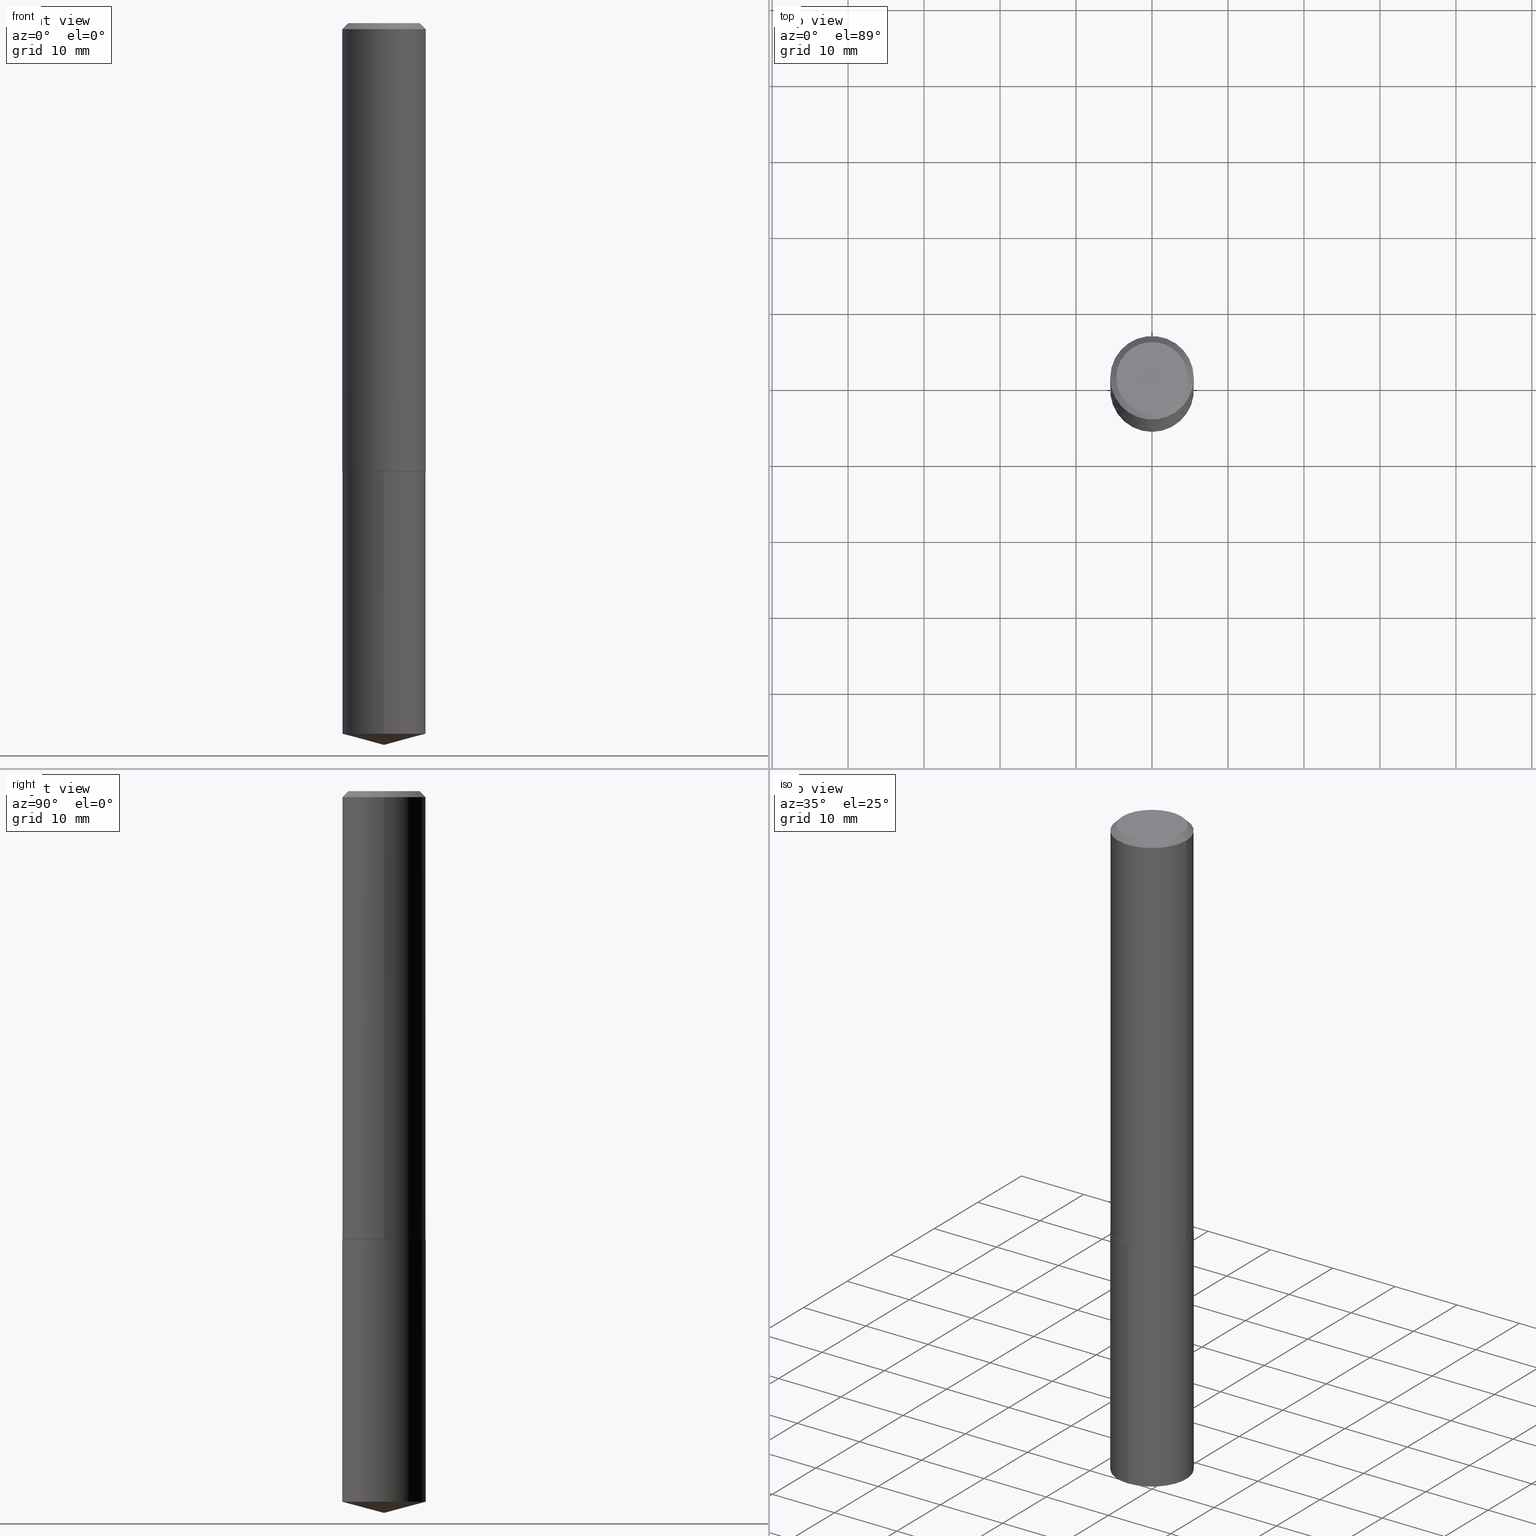
[diagram: canonical four-view strip — front | top / right | iso, engineering-drawing reading convention]
A machine part, canonical four-view strip (front | top / right | iso — engineering-drawing reading convention). The complete STEP part file that produces these views, byte-faithful:
ISO-10303-21;
HEADER;
FILE_DESCRIPTION (( 'STEP AP203' ),
    '1' );
FILE_NAME ('63032.STEP',
    '2024-04-23T08:10:49',
    ( '' ),
    ( '' ),
    'SwSTEP 2.0',
    'SolidWorks 2023',
    '' );
FILE_SCHEMA (( 'CONFIG_CONTROL_DESIGN' ));
ENDSEC;

DATA;
#1 = ORIENTED_EDGE ( 'NONE', *, *, #212, .F. ) ;
#2 = ORIENTED_EDGE ( 'NONE', *, *, #218, .T. ) ;
#3 =( LENGTH_UNIT ( ) NAMED_UNIT ( * ) SI_UNIT ( $, .METRE. ) );
#4 = CALENDAR_DATE ( 2024, 23, 4 ) ;
#5 = EDGE_CURVE ( 'NONE', #165, #300, #114, .T. ) ;
#6 = PRODUCT_RELATED_PRODUCT_CATEGORY ( 'detail', '', ( #157 ) ) ;
#7 = CARTESIAN_POINT ( 'NONE',  ( -1.512160567852904222E-15, -0.2165500000000081249, -2.322899999999999299 ) ) ;
#8 = SHAPE_DEFINITION_REPRESENTATION ( #34, #337 ) ;
#9 = AXIS2_PLACEMENT_3D ( 'NONE', #328, #57, #302 ) ;
#10 = ORIENTED_EDGE ( 'NONE', *, *, #283, .T. ) ;
#11 = DIRECTION ( 'NONE',  ( -2.445528827278945188E-29, 3.491395385220622639E-15, 1.000000000000000000 ) ) ;
#12 = ORGANIZATION ( 'UNSPECIFIED', 'UNSPECIFIED', '' ) ;
#13 = CYLINDRICAL_SURFACE ( 'NONE', #362, 0.2165500000000000203 ) ;
#14 = EDGE_CURVE ( 'NONE', #81, #300, #24, .T. ) ;
#15 = ORIENTED_EDGE ( 'NONE', *, *, #5, .T. ) ;
#16 = DIRECTION ( 'NONE',  ( -2.445528827278945468E-29, 3.491395385220622639E-15, 1.000000000000000000 ) ) ;
#17 = ORIENTED_EDGE ( 'NONE', *, *, #14, .T. ) ;
#18 = DIRECTION ( 'NONE',  ( 0.7071067811860403118, -2.468850131076945266E-15, 0.7071067811870545006 ) ) ;
#19 = AXIS2_PLACEMENT_3D ( 'NONE', #340, #109, #287 ) ;
#20 = CC_DESIGN_APPROVAL ( #30, ( #43 ) ) ;
#21 = CARTESIAN_POINT ( 'NONE',  ( -8.713403499450715820E-28, 1.243977945476864475E-13, 35.62987874015747991 ) ) ;
#22 = ORIENTED_EDGE ( 'NONE', *, *, #261, .F. ) ;
#23 = DIRECTION ( 'NONE',  ( -2.445528827278945468E-29, 3.491395385220622639E-15, 1.000000000000000000 ) ) ;
#24 = LINE ( 'NONE', #83, #250 ) ;
#25 = APPROVAL_ROLE ( '' ) ;
#26 = VECTOR ( 'NONE', #330, 39.37007874015748143 ) ;
#27 = AXIS2_PLACEMENT_3D ( 'NONE', #336, #119, #68 ) ;
#28 = DIRECTION ( 'NONE',  ( 1.000000000000000000, -6.982962677686271444E-15, 0.000000000000000000 ) ) ;
#29 = COORDINATED_UNIVERSAL_TIME_OFFSET ( 5, 0, .BEHIND. ) ;
#30 = APPROVAL ( #144, 'UNSPECIFIED' ) ;
#31 = LINE ( 'NONE', #181, #26 ) ;
#32 = CARTESIAN_POINT ( 'NONE',  ( 0.2165500000000000203, -1.621269359691810318E-15, -0.03125000000000019429 ) ) ;
#33 = ADVANCED_FACE ( 'NONE', ( #55 ), #277, .T. ) ;
#34 = PRODUCT_DEFINITION_SHAPE ( 'NONE', 'NONE',  #47 ) ;
#35 =( NAMED_UNIT ( * ) PLANE_ANGLE_UNIT ( ) SI_UNIT ( $, .RADIAN. ) );
#36 = DIRECTION ( 'NONE',  ( 1.000000000000000000, -6.982962677686269866E-15, 0.000000000000000000 ) ) ;
#37 = VECTOR ( 'NONE', #18, 39.37007874015748854 ) ;
#38 = LOCAL_TIME ( 4, 10, 49.00000000000000000, #66 ) ;
#39 = APPROVAL_ROLE ( '' ) ;
#40 = ADVANCED_FACE ( 'NONE', ( #267 ), #379, .T. ) ;
#41 = DATE_AND_TIME ( #155, #69 ) ;
#42 = AXIS2_PLACEMENT_3D ( 'NONE', #147, #273, #112 ) ;
#43 = PRODUCT_DEFINITION_FORMATION_WITH_SPECIFIED_SOURCE ( 'ANY', '', #157, .NOT_KNOWN. ) ;
#44 = FACE_OUTER_BOUND ( 'NONE', #73, .T. ) ;
#45 = ORIENTED_EDGE ( 'NONE', *, *, #350, .T. ) ;
#46 = EDGE_LOOP ( 'NONE', ( #10, #91 ) ) ;
#47 = PRODUCT_DEFINITION ( 'UNKNOWN', '', #43, #177 ) ;
#48 = LINE ( 'NONE', #137, #169 ) ;
#49 = DIRECTION ( 'NONE',  ( -1.000000000000000000, 6.982962677686265922E-15, -4.876176775795935793E-29 ) ) ;
#50 = ORIENTED_EDGE ( 'NONE', *, *, #125, .T. ) ;
#51 = CARTESIAN_POINT ( 'NONE',  ( 5.679356755484362262E-29, -8.108616261329323209E-15, -2.322400000000000464 ) ) ;
#52 = EDGE_LOOP ( 'NONE', ( #372, #351, #288, #381 ) ) ;
#53 = PLANE ( 'NONE',  #186 ) ;
#54 = AXIS2_PLACEMENT_3D ( 'NONE', #101, #222, #341 ) ;
#55 = FACE_OUTER_BOUND ( 'NONE', #174, .T. ) ;
#56 = DIRECTION ( 'NONE',  ( 1.000000000000000000, -6.982962677686266711E-15, 4.876177403239504402E-29 ) ) ;
#57 = DIRECTION ( 'NONE',  ( -2.445468806185136597E-29, 3.491481338843145583E-15, 1.000000000000000000 ) ) ;
#58 = PERSON_AND_ORGANIZATION ( #281, #12 ) ;
#59 = CARTESIAN_POINT ( 'NONE',  ( -0.1852999999999999925, 1.348497380094688552E-15, 4.837354856539620827E-19 ) ) ;
#60 = CC_DESIGN_PERSON_AND_ORGANIZATION_ASSIGNMENT ( #184, #64, ( #157 ) ) ;
#61 = PERSON_AND_ORGANIZATION ( #281, #12 ) ;
#62 = LOCAL_TIME ( 4, 10, 49.00000000000000000, #332 ) ;
#63 = CARTESIAN_POINT ( 'NONE',  ( -0.2165500000000002701, -6.569935967040822957E-15, -2.322400000000000464 ) ) ;
#64 = PERSON_AND_ORGANIZATION_ROLE ( 'design_owner' ) ;
#65 = DIRECTION ( 'NONE',  ( -2.445468806185136877E-29, 3.491481338843145188E-15, 1.000000000000000000 ) ) ;
#66 = COORDINATED_UNIVERSAL_TIME_OFFSET ( 5, 0, .BEHIND. ) ;
#67 = CARTESIAN_POINT ( 'NONE',  ( 7.642090019328598283E-31, -1.091087918388489651E-16, -0.03125000000000019429 ) ) ;
#68 = DIRECTION ( 'NONE',  ( 1.000000000000000000, 0.000000000000000000, 0.000000000000000000 ) ) ;
#69 = LOCAL_TIME ( 4, 10, 49.00000000000000000, #338 ) ;
#70 = APPROVAL_STATUS ( 'not_yet_approved' ) ;
#71 = CIRCLE ( 'NONE', #128, 0.2165500000000000203 ) ;
#72 = DIRECTION ( 'NONE',  ( -2.445468806185136597E-29, 3.491481338843145583E-15, 1.000000000000000000 ) ) ;
#73 = EDGE_LOOP ( 'NONE', ( #354, #260, #1, #321 ) ) ;
#74 = DIRECTION ( 'NONE',  ( 1.000000000000000000, -6.982962677686266711E-15, 0.000000000000000000 ) ) ;
#75 = EDGE_CURVE ( 'NONE', #374, #103, #305, .T. ) ;
#76 = LINE ( 'NONE', #173, #37 ) ;
#77 = EDGE_LOOP ( 'NONE', ( #206, #258 ) ) ;
#78 = EDGE_CURVE ( 'NONE', #239, #377, #31, .T. ) ;
#79 = CARTESIAN_POINT ( 'NONE',  ( 5.680579489887453942E-29, -8.110362001998743924E-15, -2.322900000000000187 ) ) ;
#80 = PLANE ( 'NONE',  #353 ) ;
#81 = VERTEX_POINT ( 'NONE', #59 ) ;
#82 = DIRECTION ( 'NONE',  ( -2.445528827278945188E-29, 3.491395385220622639E-15, 1.000000000000000000 ) ) ;
#83 = CARTESIAN_POINT ( 'NONE',  ( -0.2165500000000000203, 1.403051776014112116E-15, -0.03125000000000019429 ) ) ;
#84 = DIRECTION ( 'NONE',  ( 1.000000000000000000, -6.982962677686266711E-15, 4.876176775795936353E-29 ) ) ;
#85 = LINE ( 'NONE', #148, #227 ) ;
#86 = APPROVAL_DATE_TIME ( #301, #30 ) ;
#87 = DIRECTION ( 'NONE',  ( 1.000000000000000000, -6.982962677686269866E-15, 0.000000000000000000 ) ) ;
#88 =( NAMED_UNIT ( * ) SI_UNIT ( $, .STERADIAN. ) SOLID_ANGLE_UNIT ( ) );
#89 = CLOSED_SHELL ( 'NONE', ( #193, #251, #294, #319, #201 ) ) ;
#90 = AXIS2_PLACEMENT_3D ( 'NONE', #51, #264, #164 ) ;
#91 = ORIENTED_EDGE ( 'NONE', *, *, #254, .T. ) ;
#92 = PERSON_AND_ORGANIZATION ( #281, #12 ) ;
#93 = CARTESIAN_POINT ( 'NONE',  ( -1.512160567852904222E-15, -0.2165500000000081249, -2.322899999999999299 ) ) ;
#94 = PLANE ( 'NONE',  #54 ) ;
#95 = DIRECTION ( 'NONE',  ( 1.000000000000000000, -6.982962677686266711E-15, 4.876176775795936353E-29 ) ) ;
#96 = AXIS2_PLACEMENT_3D ( 'NONE', #231, #23, #200 ) ;
#97 = ADVANCED_FACE ( 'NONE', ( #118 ), #256, .T. ) ;
#98 = EDGE_CURVE ( 'NONE', #333, #130, #122, .T. ) ;
#99 = ORIENTED_EDGE ( 'NONE', *, *, #261, .T. ) ;
#100 = CIRCLE ( 'NONE', #19, 0.2165500000000000203 ) ;
#101 = CARTESIAN_POINT ( 'NONE',  ( 5.680579489887453942E-29, -8.110362001998743924E-15, -2.322900000000000187 ) ) ;
#102 = EDGE_CURVE ( 'NONE', #333, #159, #85, .T. ) ;
#103 = VERTEX_POINT ( 'NONE', #208 ) ;
#104 = CARTESIAN_POINT ( 'NONE',  ( 5.680579489887453942E-29, -8.110362001998743924E-15, -2.322900000000000187 ) ) ;
#105 = DIMENSIONAL_EXPONENTS ( 1.000000000000000000, 0.000000000000000000, 0.000000000000000000, 0.000000000000000000, 0.000000000000000000, 0.000000000000000000, 0.000000000000000000 ) ;
#106 = ORIENTED_EDGE ( 'NONE', *, *, #187, .F. ) ;
#107 = LINE ( 'NONE', #343, #285 ) ;
#108 = LOCAL_TIME ( 4, 10, 49.00000000000000000, #29 ) ;
#109 = DIRECTION ( 'NONE',  ( -2.445528827278945468E-29, 3.491395385220622639E-15, 1.000000000000000000 ) ) ;
#110 = ORIENTED_EDGE ( 'NONE', *, *, #5, .F. ) ;
#111 = CARTESIAN_POINT ( 'NONE',  ( 0.2165500000000002701, -9.620776829182285610E-15, -2.322400000000000464 ) ) ;
#112 = DIRECTION ( 'NONE',  ( -1.000000000000000000, 6.982962677686266711E-15, 0.000000000000000000 ) ) ;
#113 = CARTESIAN_POINT ( 'NONE',  ( -1.182960040634177403E-47, 1.688953421129294899E-33, 4.837354856632018279E-19 ) ) ;
#114 = LINE ( 'NONE', #205, #185 ) ;
#115 = VECTOR ( 'NONE', #244, 39.37007874015748854 ) ;
#116 = CARTESIAN_POINT ( 'NONE',  ( -1.182960040634177403E-47, 1.688953421129294899E-33, 4.837354856632018279E-19 ) ) ;
#117 = APPROVAL ( #306, 'UNSPECIFIED' ) ;
#118 = FACE_OUTER_BOUND ( 'NONE', #52, .T. ) ;
#119 = DIRECTION ( 'NONE',  ( 0.000000000000000000, 0.000000000000000000, 1.000000000000000000 ) ) ;
#120 = DIRECTION ( 'NONE',  ( -6.745023994389847810E-15, -0.9659258262890687563, 0.2588190451025194627 ) ) ;
#121 = EDGE_CURVE ( 'NONE', #103, #165, #202, .T. ) ;
#122 = LINE ( 'NONE', #386, #215 ) ;
#123 = CIRCLE ( 'NONE', #324, 0.2165500000000000203 ) ;
#124 = DATE_AND_TIME ( #248, #216 ) ;
#125 = EDGE_CURVE ( 'NONE', #159, #176, #360, .T. ) ;
#126 = EDGE_CURVE ( 'NONE', #172, #176, #369, .T. ) ;
#127 = DIRECTION ( 'NONE',  ( -2.445528827278945468E-29, 3.491395385220622639E-15, 1.000000000000000000 ) ) ;
#128 = AXIS2_PLACEMENT_3D ( 'NONE', #166, #16, #315 ) ;
#129 = CARTESIAN_POINT ( 'NONE',  ( -1.512160567852871090E-15, -0.2165500000000128711, -3.682175602379041290 ) ) ;
#130 = VERTEX_POINT ( 'NONE', #249 ) ;
#131 = CARTESIAN_POINT ( 'NONE',  ( 7.642090019328598283E-31, -1.091087918388489651E-16, -0.03125000000000019429 ) ) ;
#132 = ORIENTED_EDGE ( 'NONE', *, *, #78, .F. ) ;
#133 = DIRECTION ( 'NONE',  ( -2.445528827278945468E-29, 3.491395385220622639E-15, 1.000000000000000000 ) ) ;
#134 = EDGE_LOOP ( 'NONE', ( #132, #345, #17, #45 ) ) ;
#135 = AXIS2_PLACEMENT_3D ( 'NONE', #366, #364, #335 ) ;
#136 = AXIS2_PLACEMENT_3D ( 'NONE', #131, #259, #375 ) ;
#137 = CARTESIAN_POINT ( 'NONE',  ( 0.2165500000000001590, -1.512160567852962203E-15, 1.055936080798610736E-29 ) ) ;
#138 = DIRECTION ( 'NONE',  ( 6.863315791527699781E-15, 0.9659258262890704216, 0.2588190451025125793 ) ) ;
#139 = DIRECTION ( 'NONE',  ( -2.445468806185136877E-29, 3.491481338843145188E-15, 1.000000000000000000 ) ) ;
#140 = EDGE_LOOP ( 'NONE', ( #225, #15, #106, #22 ) ) ;
#141 = DIRECTION ( 'NONE',  ( -2.438088387897960049E-29, 3.491481338843145188E-15, 1.000000000000000000 ) ) ;
#142 = DIRECTION ( 'NONE',  ( -0.7071067811865454633, 2.468850131082235367E-15, -0.7071067811865495711 ) ) ;
#143 = CIRCLE ( 'NONE', #245, 0.2165500000000002701 ) ;
#144 = APPROVAL_STATUS ( 'not_yet_approved' ) ;
#145 = CC_DESIGN_APPROVAL ( #117, ( #47 ) ) ;
#146 = ADVANCED_FACE ( 'NONE', ( #191 ), #150, .T. ) ;
#147 = CARTESIAN_POINT ( 'NONE',  ( 7.642090019328598283E-31, -1.091087918388489651E-16, -0.03125000000000019429 ) ) ;
#148 = CARTESIAN_POINT ( 'NONE',  ( 9.146488073791095237E-29, -1.305891634314169168E-14, -3.740200000000000191 ) ) ;
#149 =( CONVERSION_BASED_UNIT ( 'INCH', #243 ) LENGTH_UNIT ( ) NAMED_UNIT ( #105 ) );
#150 = CYLINDRICAL_SURFACE ( 'NONE', #367, 0.2165500000000001590 ) ;
#151 = APPLICATION_PROTOCOL_DEFINITION ( 'international standard', 'config_control_design', 1994, #280 ) ;
#152 = CYLINDRICAL_SURFACE ( 'NONE', #271, 0.2165500000000000203 ) ;
#153 = CARTESIAN_POINT ( 'NONE',  ( 0.2160500000000008247, -9.619031088512869628E-15, -2.322900000000000631 ) ) ;
#154 = CARTESIAN_POINT ( 'NONE',  ( -0.2165500000000002701, -6.569935967040822957E-15, -2.322400000000000464 ) ) ;
#155 = CALENDAR_DATE ( 2024, 23, 4 ) ;
#156 = CLOSED_SHELL ( 'NONE', ( #97, #146, #40, #303, #33, #214, #168, #269 ) ) ;
#157 = PRODUCT ( '63032', '63032', '', ( #363 ) ) ;
#158 = APPROVAL_DATE_TIME ( #41, #242 ) ;
#159 = VERTEX_POINT ( 'NONE', #129 ) ;
#160 = APPLICATION_CONTEXT ( 'configuration controlled 3d designs of mechanical parts and assemblies' ) ;
#161 = AXIS2_PLACEMENT_3D ( 'NONE', #356, #270, #87 ) ;
#162 = ORIENTED_EDGE ( 'NONE', *, *, #121, .T. ) ;
#163 = DIRECTION ( 'NONE',  ( 2.438088387897960049E-29, -3.491481338843145188E-15, -1.000000000000000000 ) ) ;
#164 = DIRECTION ( 'NONE',  ( 1.000000000000000000, -6.982962677686269866E-15, 0.000000000000000000 ) ) ;
#165 = VERTEX_POINT ( 'NONE', #154 ) ;
#166 = CARTESIAN_POINT ( 'NONE',  ( 9.004727159722352583E-29, -1.285613056738791037E-14, -3.682175602379041734 ) ) ;
#167 = EDGE_LOOP ( 'NONE', ( #298, #195 ) ) ;
#168 = ADVANCED_FACE ( 'NONE', ( #217 ), #308, .T. ) ;
#169 = VECTOR ( 'NONE', #139, 39.37007874015748143 ) ;
#170 = CC_DESIGN_APPROVAL ( #242, ( #203 ) ) ;
#171 = DIRECTION ( 'NONE',  ( 1.000000000000000000, -6.982962677686265922E-15, 4.876176775795935793E-29 ) ) ;
#172 = VERTEX_POINT ( 'NONE', #224 ) ;
#173 = CARTESIAN_POINT ( 'NONE',  ( 0.2165500000000002701, -9.620776829182285610E-15, -2.322400000000000464 ) ) ;
#174 = EDGE_LOOP ( 'NONE', ( #253, #233, #358, #179 ) ) ;
#175 = PERSON_AND_ORGANIZATION_ROLE ( 'creator' ) ;
#176 = VERTEX_POINT ( 'NONE', #7 ) ;
#177 = DESIGN_CONTEXT ( 'detailed design', #280, 'design' ) ;
#178 =( GEOMETRIC_REPRESENTATION_CONTEXT ( 3 ) GLOBAL_UNCERTAINTY_ASSIGNED_CONTEXT ( ( #252 ) ) GLOBAL_UNIT_ASSIGNED_CONTEXT ( ( #149, #35, #88 ) ) REPRESENTATION_CONTEXT ( 'NONE', 'WORKASPACE' ) );
#179 = ORIENTED_EDGE ( 'NONE', *, *, #310, .F. ) ;
#180 = DATE_AND_TIME ( #329, #108 ) ;
#181 = CARTESIAN_POINT ( 'NONE',  ( 0.2165500000000000203, -1.594749633256274438E-15, -0.03125000000000019429 ) ) ;
#182 = COORDINATED_UNIVERSAL_TIME_OFFSET ( 5, 0, .BEHIND. ) ;
#183 = DIRECTION ( 'NONE',  ( 2.445468806185136597E-29, -3.491481338843145583E-15, -1.000000000000000000 ) ) ;
#184 = PERSON_AND_ORGANIZATION ( #281, #12 ) ;
#185 = VECTOR ( 'NONE', #65, 39.37007874015748143 ) ;
#186 = AXIS2_PLACEMENT_3D ( 'NONE', #268, #141, #171 ) ;
#187 = EDGE_CURVE ( 'NONE', #377, #300, #361, .T. ) ;
#188 = EDGE_CURVE ( 'NONE', #314, #165, #143, .T. ) ;
#189 = AXIS2_PLACEMENT_3D ( 'NONE', #307, #373, #74 ) ;
#190 = APPROVAL_PERSON_ORGANIZATION ( #92, #117, #39 ) ;
#191 = FACE_OUTER_BOUND ( 'NONE', #140, .T. ) ;
#192 = ORIENTED_EDGE ( 'NONE', *, *, #223, .F. ) ;
#193 = ADVANCED_FACE ( 'NONE', ( #44 ), #152, .T. ) ;
#194 = AXIS2_PLACEMENT_3D ( 'NONE', #113, #320, #378 ) ;
#195 = ORIENTED_EDGE ( 'NONE', *, *, #126, .T. ) ;
#196 = CC_DESIGN_SECURITY_CLASSIFICATION ( #203, ( #43 ) ) ;
#197 = DIRECTION ( 'NONE',  ( -2.445468806185136597E-29, 3.491481338843145583E-15, 1.000000000000000000 ) ) ;
#198 = ORIENTED_EDGE ( 'NONE', *, *, #247, .F. ) ;
#199 = DIRECTION ( 'NONE',  ( -2.445528827278945468E-29, 3.491395385220622639E-15, 1.000000000000000000 ) ) ;
#200 = DIRECTION ( 'NONE',  ( -6.982962677686266711E-15, -1.000000000000000000, 3.510303681827571802E-15 ) ) ;
#201 = ADVANCED_FACE ( 'NONE', ( #370 ), #94, .F. ) ;
#202 = LINE ( 'NONE', #63, #115 ) ;
#203 = SECURITY_CLASSIFICATION ( '', '', #272 ) ;
#204 = DIRECTION ( 'NONE',  ( -6.982962677686265133E-15, -1.000000000000000000, 2.523064413451178124E-15 ) ) ;
#205 = CARTESIAN_POINT ( 'NONE',  ( -0.2165500000000001590, 1.538680294288498082E-15, -1.065195393794700623E-29 ) ) ;
#206 = ORIENTED_EDGE ( 'NONE', *, *, #75, .F. ) ;
#207 = DATE_TIME_ROLE ( 'classification_date' ) ;
#208 = CARTESIAN_POINT ( 'NONE',  ( -0.2160500000000008247, -6.572585194214933370E-15, -2.322900000000000631 ) ) ;
#209 = PERSON_AND_ORGANIZATION_ROLE ( 'creator' ) ;
#210 = ORIENTED_EDGE ( 'NONE', *, *, #188, .F. ) ;
#211 = PERSON_AND_ORGANIZATION ( #281, #12 ) ;
#212 = EDGE_CURVE ( 'NONE', #176, #172, #100, .T. ) ;
#213 = PERSON_AND_ORGANIZATION_ROLE ( 'design_supplier' ) ;
#214 = ADVANCED_FACE ( 'NONE', ( #352 ), #322, .T. ) ;
#215 = VECTOR ( 'NONE', #138, 39.37007874015749564 ) ;
#216 = LOCAL_TIME ( 4, 10, 49.00000000000000000, #182 ) ;
#217 = FACE_OUTER_BOUND ( 'NONE', #134, .T. ) ;
#218 = EDGE_CURVE ( 'NONE', #130, #159, #71, .T. ) ;
#219 = CC_DESIGN_DATE_AND_TIME_ASSIGNMENT ( #180, #274, ( #47 ) ) ;
#220 = AXIS2_PLACEMENT_3D ( 'NONE', #21, #349, #226 ) ;
#221 = ORIENTED_EDGE ( 'NONE', *, *, #102, .F. ) ;
#222 = DIRECTION ( 'NONE',  ( 2.445528827278945188E-29, -3.491395385220622639E-15, -1.000000000000000000 ) ) ;
#223 = EDGE_CURVE ( 'NONE', #130, #172, #107, .T. ) ;
#224 = CARTESIAN_POINT ( 'NONE',  ( 1.538680294288586829E-15, 0.2165499999999918879, -2.322900000000001075 ) ) ;
#225 = ORIENTED_EDGE ( 'NONE', *, *, #188, .T. ) ;
#226 = DIRECTION ( 'NONE',  ( -6.982962677686266711E-15, -1.000000000000000000, 3.510303681827571802E-15 ) ) ;
#227 = VECTOR ( 'NONE', #120, 39.37007874015747433 ) ;
#228 = EDGE_LOOP ( 'NONE', ( #192, #2, #50, #313 ) ) ;
#229 = APPROVAL_PERSON_ORGANIZATION ( #58, #30, #25 ) ;
#230 = EDGE_CURVE ( 'NONE', #159, #130, #123, .T. ) ;
#231 = CARTESIAN_POINT ( 'NONE',  ( -8.713403499450715820E-28, 1.243977945476864475E-13, 35.62987874015747991 ) ) ;
#232 = FACE_OUTER_BOUND ( 'NONE', #228, .T. ) ;
#233 = ORIENTED_EDGE ( 'NONE', *, *, #326, .T. ) ;
#234 = FACE_OUTER_BOUND ( 'NONE', #77, .T. ) ;
#235 = MANIFOLD_SOLID_BREP ( 'Body-Move/Copy2[2]', #156 ) ;
#236 = ORIENTED_EDGE ( 'NONE', *, *, #350, .F. ) ;
#237 = AXIS2_PLACEMENT_3D ( 'NONE', #67, #183, #279 ) ;
#238 = DIRECTION ( 'NONE',  ( -2.445468806185136597E-29, 3.491481338843145583E-15, 1.000000000000000000 ) ) ;
#239 = VERTEX_POINT ( 'NONE', #385 ) ;
#240 = PERSON_AND_ORGANIZATION ( #281, #12 ) ;
#241 = DIRECTION ( 'NONE',  ( -2.445468806185136597E-29, 3.491481338843145583E-15, 1.000000000000000000 ) ) ;
#242 = APPROVAL ( #70, 'UNSPECIFIED' ) ;
#243 = LENGTH_MEASURE_WITH_UNIT ( LENGTH_MEASURE( 0.02539999999999999897 ), #3 );
#244 = DIRECTION ( 'NONE',  ( -0.7071067811860403118, 7.493145998868519270E-15, 0.7071067811870545006 ) ) ;
#245 = AXIS2_PLACEMENT_3D ( 'NONE', #284, #311, #36 ) ;
#246 = APPLICATION_PROTOCOL_DEFINITION ( 'international standard', 'config_control_design', 1994, #160 ) ;
#247 = EDGE_CURVE ( 'NONE', #374, #314, #76, .T. ) ;
#248 = CALENDAR_DATE ( 2024, 23, 4 ) ;
#249 = CARTESIAN_POINT ( 'NONE',  ( 1.538680294288587027E-15, 0.2165499999999871972, -3.682175602379042179 ) ) ;
#250 = VECTOR ( 'NONE', #142, 39.37007874015748143 ) ;
#251 = ADVANCED_FACE ( 'NONE', ( #289 ), #344, .T. ) ;
#252 = UNCERTAINTY_MEASURE_WITH_UNIT (LENGTH_MEASURE( 1.000000000000000082E-05 ), #149, 'distance_accuracy_value', 'NONE');
#253 = ORIENTED_EDGE ( 'NONE', *, *, #121, .F. ) ;
#254 = EDGE_CURVE ( 'NONE', #239, #81, #339, .T. ) ;
#255 = DIRECTION ( 'NONE',  ( -6.982962677686265133E-15, -1.000000000000000000, 3.784596620176766988E-15 ) ) ;
#256 = CONICAL_SURFACE ( 'NONE', #42, 0.2165500000000000203, 0.7853981633974453924 ) ;
#257 = EDGE_LOOP ( 'NONE', ( #221, #383, #265 ) ) ;
#258 = ORIENTED_EDGE ( 'NONE', *, *, #326, .F. ) ;
#259 = DIRECTION ( 'NONE',  ( -2.445468806185136597E-29, 3.491481338843145583E-15, 1.000000000000000000 ) ) ;
#260 = ORIENTED_EDGE ( 'NONE', *, *, #223, .T. ) ;
#261 = EDGE_CURVE ( 'NONE', #314, #377, #48, .T. ) ;
#262 = CARTESIAN_POINT ( 'NONE',  ( -5.914800203170887017E-48, 8.444767105646474497E-34, 2.418677428316009140E-19 ) ) ;
#263 = CONICAL_SURFACE ( 'NONE', #96, 146.9311341562578832, 1.308996938995752091 ) ;
#264 = DIRECTION ( 'NONE',  ( -2.445468806185136597E-29, 3.491481338843145583E-15, 1.000000000000000000 ) ) ;
#265 = ORIENTED_EDGE ( 'NONE', *, *, #230, .F. ) ;
#266 = CARTESIAN_POINT ( 'NONE',  ( 0.000000000000000000, 0.000000000000000000, 0.000000000000000000 ) ) ;
#267 = FACE_OUTER_BOUND ( 'NONE', #342, .T. ) ;
#268 = CARTESIAN_POINT ( 'NONE',  ( 5.680579489887455063E-29, -8.110362001998745502E-15, -2.322900000000000631 ) ) ;
#269 = ADVANCED_FACE ( 'NONE', ( #327 ), #80, .F. ) ;
#270 = DIRECTION ( 'NONE',  ( -2.445468806185136597E-29, 3.491481338843145583E-15, 1.000000000000000000 ) ) ;
#271 = AXIS2_PLACEMENT_3D ( 'NONE', #104, #127, #255 ) ;
#272 = SECURITY_CLASSIFICATION_LEVEL ( 'unclassified' ) ;
#273 = DIRECTION ( 'NONE',  ( 2.445468806185136597E-29, -3.491481338843145583E-15, -1.000000000000000000 ) ) ;
#274 = DATE_TIME_ROLE ( 'creation_date' ) ;
#275 = ORIENTED_EDGE ( 'NONE', *, *, #310, .T. ) ;
#276 = CARTESIAN_POINT ( 'NONE',  ( 0.000000000000000000, 0.000000000000000000, 0.000000000000000000 ) ) ;
#277 = CONICAL_SURFACE ( 'NONE', #161, 0.2165500000000002701, 0.7853981633967311859 ) ;
#278 = APPROVAL_DATE_TIME ( #124, #117 ) ;
#279 = DIRECTION ( 'NONE',  ( -1.000000000000000000, 6.982962677686266711E-15, 0.000000000000000000 ) ) ;
#280 = APPLICATION_CONTEXT ( 'configuration controlled 3d designs of mechanical parts and assemblies' ) ;
#281 = PERSON ( 'UNSPECIFIED', 'UNSPECIFIED', 'UNSPECIFIED', ('UNSPECIFIED'), ('UNSPECIFIED'), ('UNSPECIFIED') ) ;
#282 = APPROVAL_ROLE ( '' ) ;
#283 = EDGE_CURVE ( 'NONE', #81, #239, #368, .T. ) ;
#284 = CARTESIAN_POINT ( 'NONE',  ( 5.679356755484362262E-29, -8.108616261329323209E-15, -2.322400000000000464 ) ) ;
#285 = VECTOR ( 'NONE', #82, 39.37007874015748143 ) ;
#286 = FACE_OUTER_BOUND ( 'NONE', #325, .T. ) ;
#287 = DIRECTION ( 'NONE',  ( -6.982962677686265133E-15, -1.000000000000000000, 3.784596620176766988E-15 ) ) ;
#288 = ORIENTED_EDGE ( 'NONE', *, *, #187, .T. ) ;
#289 = FACE_OUTER_BOUND ( 'NONE', #257, .T. ) ;
#290 = AXIS2_PLACEMENT_3D ( 'NONE', #266, #197, #84 ) ;
#291 = AXIS2_PLACEMENT_3D ( 'NONE', #116, #295, #56 ) ;
#292 = DIRECTION ( 'NONE',  ( 1.000000000000000000, -6.982962677686271444E-15, 0.000000000000000000 ) ) ;
#293 = ORIENTED_EDGE ( 'NONE', *, *, #102, .T. ) ;
#294 = ADVANCED_FACE ( 'NONE', ( #286 ), #263, .T. ) ;
#295 = DIRECTION ( 'NONE',  ( -2.445468806185136597E-29, 3.491481338843145583E-15, 1.000000000000000000 ) ) ;
#296 = ORIENTED_EDGE ( 'NONE', *, *, #98, .F. ) ;
#297 = CC_DESIGN_PERSON_AND_ORGANIZATION_ASSIGNMENT ( #390, #334, ( #203 ) ) ;
#298 = ORIENTED_EDGE ( 'NONE', *, *, #212, .T. ) ;
#299 = APPROVAL_PERSON_ORGANIZATION ( #61, #242, #282 ) ;
#300 = VERTEX_POINT ( 'NONE', #347 ) ;
#301 = DATE_AND_TIME ( #4, #62 ) ;
#302 = DIRECTION ( 'NONE',  ( 1.000000000000000000, -6.982962677686269866E-15, 0.000000000000000000 ) ) ;
#303 = ADVANCED_FACE ( 'NONE', ( #234 ), #53, .F. ) ;
#304 = DATE_AND_TIME ( #357, #38 ) ;
#305 = CIRCLE ( 'NONE', #388, 0.2160500000000008247 ) ;
#306 = APPROVAL_STATUS ( 'not_yet_approved' ) ;
#307 = CARTESIAN_POINT ( 'NONE',  ( 7.642090019328598283E-31, -1.091087918388489651E-16, -0.03125000000000019429 ) ) ;
#308 = CONICAL_SURFACE ( 'NONE', #237, 0.2165500000000000203, 0.7853981633974453924 ) ;
#309 = CIRCLE ( 'NONE', #317, 0.2160500000000008247 ) ;
#310 = EDGE_CURVE ( 'NONE', #165, #314, #371, .T. ) ;
#311 = DIRECTION ( 'NONE',  ( -2.445468806185136597E-29, 3.491481338843145583E-15, 1.000000000000000000 ) ) ;
#312 = CC_DESIGN_PERSON_AND_ORGANIZATION_ASSIGNMENT ( #240, #209, ( #47 ) ) ;
#313 = ORIENTED_EDGE ( 'NONE', *, *, #126, .F. ) ;
#314 = VERTEX_POINT ( 'NONE', #111 ) ;
#315 = DIRECTION ( 'NONE',  ( -6.982962677686265133E-15, -1.000000000000000000, 2.523064413451178124E-15 ) ) ;
#316 = VECTOR ( 'NONE', #11, 39.37007874015748143 ) ;
#317 = AXIS2_PLACEMENT_3D ( 'NONE', #323, #238, #292 ) ;
#318 = ORIENTED_EDGE ( 'NONE', *, *, #218, .F. ) ;
#319 = ADVANCED_FACE ( 'NONE', ( #232 ), #13, .T. ) ;
#320 = DIRECTION ( 'NONE',  ( -2.445468806185136597E-29, 3.491481338843145583E-15, 1.000000000000000000 ) ) ;
#321 = ORIENTED_EDGE ( 'NONE', *, *, #125, .F. ) ;
#322 = CYLINDRICAL_SURFACE ( 'NONE', #290, 0.2165500000000001590 ) ;
#323 = CARTESIAN_POINT ( 'NONE',  ( 5.680579489887455063E-29, -8.110362001998745502E-15, -2.322900000000000631 ) ) ;
#324 = AXIS2_PLACEMENT_3D ( 'NONE', #387, #133, #204 ) ;
#325 = EDGE_LOOP ( 'NONE', ( #296, #293, #318 ) ) ;
#326 = EDGE_CURVE ( 'NONE', #103, #374, #309, .T. ) ;
#327 = FACE_OUTER_BOUND ( 'NONE', #46, .T. ) ;
#328 = CARTESIAN_POINT ( 'NONE',  ( 5.679356755484362262E-29, -8.108616261329323209E-15, -2.322400000000000464 ) ) ;
#329 = CALENDAR_DATE ( 2024, 23, 4 ) ;
#330 = DIRECTION ( 'NONE',  ( 0.7071067811865454633, -7.319954787623248157E-15, -0.7071067811865495711 ) ) ;
#331 = EDGE_LOOP ( 'NONE', ( #110, #275, #99, #236 ) ) ;
#332 = COORDINATED_UNIVERSAL_TIME_OFFSET ( 5, 0, .BEHIND. ) ;
#333 = VERTEX_POINT ( 'NONE', #355 ) ;
#334 = PERSON_AND_ORGANIZATION_ROLE ( 'classification_officer' ) ;
#335 = DIRECTION ( 'NONE',  ( -6.982962677686265133E-15, -1.000000000000000000, 3.784596620176766988E-15 ) ) ;
#336 = CARTESIAN_POINT ( 'NONE',  ( 0.000000000000000000, 0.000000000000000000, 0.000000000000000000 ) ) ;
#337 = ADVANCED_BREP_SHAPE_REPRESENTATION ( '63032', ( #359, #235, #27 ), #178 ) ;
#338 = COORDINATED_UNIVERSAL_TIME_OFFSET ( 5, 0, .BEHIND. ) ;
#339 = CIRCLE ( 'NONE', #194, 0.1852999999999999925 ) ;
#340 = CARTESIAN_POINT ( 'NONE',  ( 5.680579489887453942E-29, -8.110362001998743924E-15, -2.322900000000000187 ) ) ;
#341 = DIRECTION ( 'NONE',  ( 6.982962677686265922E-15, 1.000000000000000000, -3.491395385220622639E-15 ) ) ;
#342 = EDGE_LOOP ( 'NONE', ( #348, #162, #210, #198 ) ) ;
#343 = CARTESIAN_POINT ( 'NONE',  ( 1.538680294288553500E-15, 0.2165499999999918879, -2.322900000000001075 ) ) ;
#344 = CONICAL_SURFACE ( 'NONE', #220, 146.9311341562578832, 1.308996938995752091 ) ;
#345 = ORIENTED_EDGE ( 'NONE', *, *, #283, .F. ) ;
#346 = CC_DESIGN_PERSON_AND_ORGANIZATION_ASSIGNMENT ( #365, #175, ( #43 ) ) ;
#347 = CARTESIAN_POINT ( 'NONE',  ( -0.2165500000000000203, -2.570182232295586298E-15, -0.03125000000000019429 ) ) ;
#348 = ORIENTED_EDGE ( 'NONE', *, *, #75, .T. ) ;
#349 = DIRECTION ( 'NONE',  ( -2.445528827278945468E-29, 3.491395385220622639E-15, 1.000000000000000000 ) ) ;
#350 = EDGE_CURVE ( 'NONE', #300, #377, #380, .T. ) ;
#351 = ORIENTED_EDGE ( 'NONE', *, *, #78, .T. ) ;
#352 = FACE_OUTER_BOUND ( 'NONE', #331, .T. ) ;
#353 = AXIS2_PLACEMENT_3D ( 'NONE', #262, #163, #49 ) ;
#354 = ORIENTED_EDGE ( 'NONE', *, *, #230, .T. ) ;
#355 = CARTESIAN_POINT ( 'NONE',  ( 9.146766919788712829E-29, -1.305851701980217299E-14, -3.740200000000000191 ) ) ;
#356 = CARTESIAN_POINT ( 'NONE',  ( 5.679356755484362262E-29, -8.108616261329323209E-15, -2.322400000000000464 ) ) ;
#357 = CALENDAR_DATE ( 2024, 23, 4 ) ;
#358 = ORIENTED_EDGE ( 'NONE', *, *, #247, .T. ) ;
#359 = MANIFOLD_SOLID_BREP ( 'Body-Move/Copy2[1]', #89 ) ;
#360 = LINE ( 'NONE', #93, #316 ) ;
#361 = CIRCLE ( 'NONE', #189, 0.2165500000000000203 ) ;
#362 = AXIS2_PLACEMENT_3D ( 'NONE', #79, #199, #382 ) ;
#363 = MECHANICAL_CONTEXT ( 'NONE', #160, 'mechanical' ) ;
#364 = DIRECTION ( 'NONE',  ( -2.445528827278945468E-29, 3.491395385220622639E-15, 1.000000000000000000 ) ) ;
#365 = PERSON_AND_ORGANIZATION ( #281, #12 ) ;
#366 = CARTESIAN_POINT ( 'NONE',  ( 5.680579489887453942E-29, -8.110362001998743924E-15, -2.322900000000000187 ) ) ;
#367 = AXIS2_PLACEMENT_3D ( 'NONE', #276, #72, #95 ) ;
#368 = CIRCLE ( 'NONE', #291, 0.1852999999999999925 ) ;
#369 = CIRCLE ( 'NONE', #135, 0.2165500000000000203 ) ;
#370 = FACE_OUTER_BOUND ( 'NONE', #167, .T. ) ;
#371 = CIRCLE ( 'NONE', #90, 0.2165500000000002701 ) ;
#372 = ORIENTED_EDGE ( 'NONE', *, *, #254, .F. ) ;
#373 = DIRECTION ( 'NONE',  ( -2.445468806185136597E-29, 3.491481338843145583E-15, 1.000000000000000000 ) ) ;
#374 = VERTEX_POINT ( 'NONE', #153 ) ;
#375 = DIRECTION ( 'NONE',  ( 1.000000000000000000, -6.982962677686266711E-15, 0.000000000000000000 ) ) ;
#376 = CC_DESIGN_PERSON_AND_ORGANIZATION_ASSIGNMENT ( #211, #213, ( #43 ) ) ;
#377 = VERTEX_POINT ( 'NONE', #32 ) ;
#378 = DIRECTION ( 'NONE',  ( 1.000000000000000000, -6.982962677686266711E-15, 4.876177403239504402E-29 ) ) ;
#379 = CONICAL_SURFACE ( 'NONE', #9, 0.2165500000000002701, 0.7853981633967311859 ) ;
#380 = CIRCLE ( 'NONE', #136, 0.2165500000000000203 ) ;
#381 = ORIENTED_EDGE ( 'NONE', *, *, #14, .F. ) ;
#382 = DIRECTION ( 'NONE',  ( -6.982962677686265133E-15, -1.000000000000000000, 3.784596620176766988E-15 ) ) ;
#383 = ORIENTED_EDGE ( 'NONE', *, *, #98, .T. ) ;
#384 = CC_DESIGN_DATE_AND_TIME_ASSIGNMENT ( #304, #207, ( #203 ) ) ;
#385 = CARTESIAN_POINT ( 'NONE',  ( 0.1852999999999999925, -1.432999956121669510E-15, 4.837354856727365293E-19 ) ) ;
#386 = CARTESIAN_POINT ( 'NONE',  ( 9.146769364938960705E-29, -1.305851701980217457E-14, -3.740200000000000191 ) ) ;
#387 = CARTESIAN_POINT ( 'NONE',  ( 9.004727159722352583E-29, -1.285613056738791037E-14, -3.682175602379041734 ) ) ;
#388 = AXIS2_PLACEMENT_3D ( 'NONE', #389, #241, #28 ) ;
#389 = CARTESIAN_POINT ( 'NONE',  ( 5.680579489887455063E-29, -8.110362001998745502E-15, -2.322900000000000631 ) ) ;
#390 = PERSON_AND_ORGANIZATION ( #281, #12 ) ;
ENDSEC;
END-ISO-10303-21;
